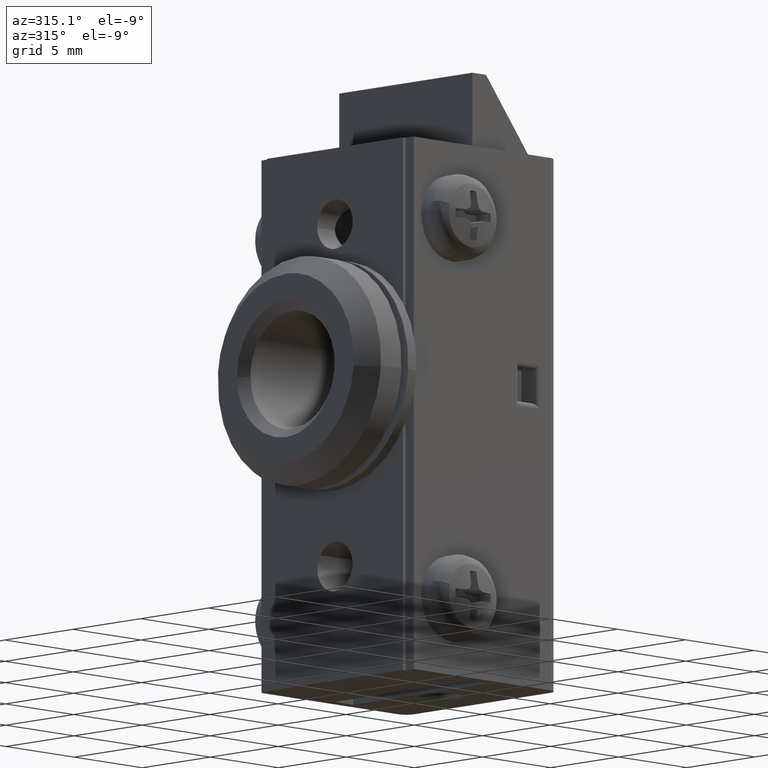
[diagram: clean part render]
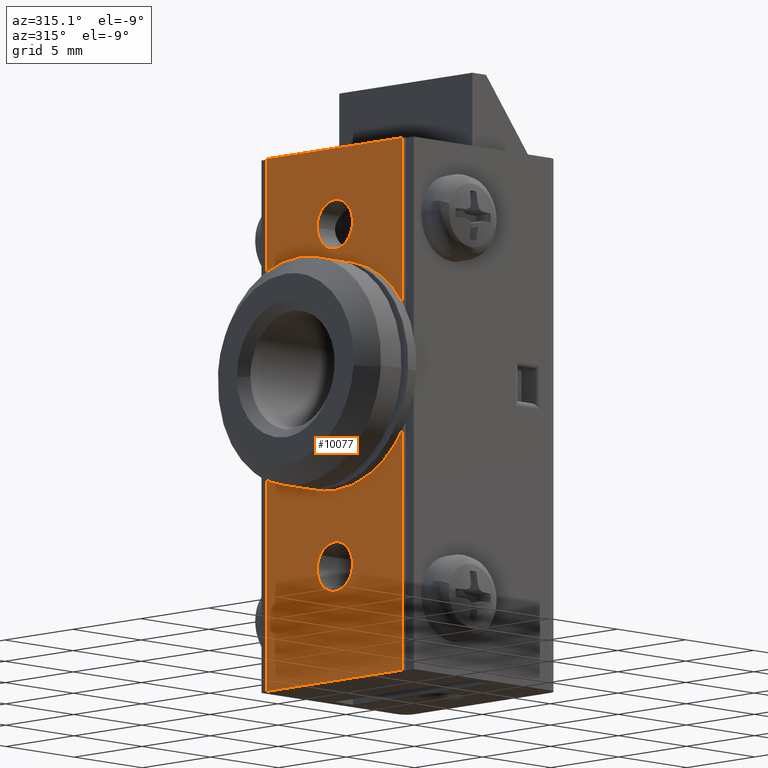
[diagram: same view with one face highlighted and labeled with its STEP entity id]
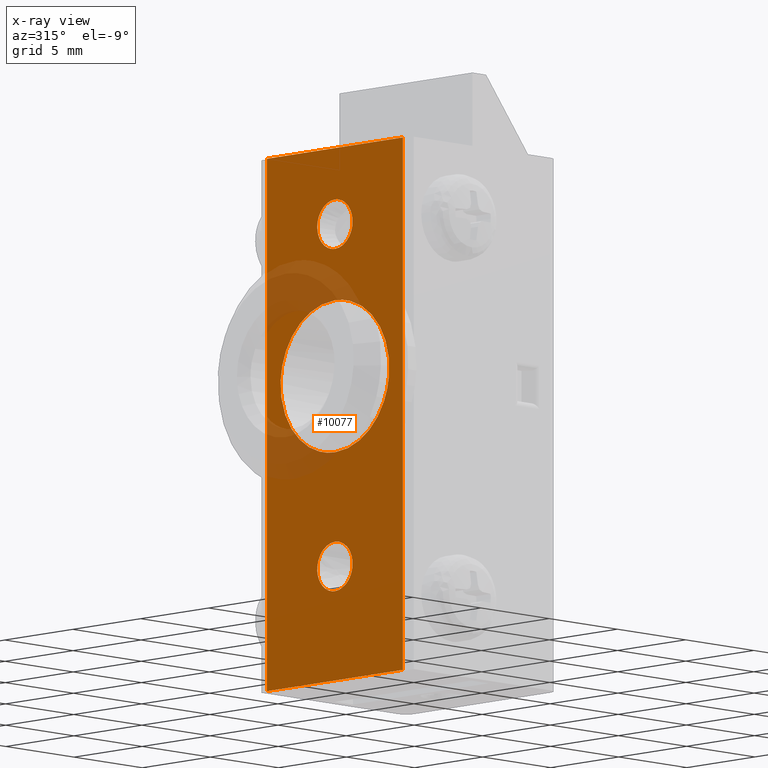
[diagram: x-ray of the same camera — body ghosted, the highlighted face saturated]
A machine part, auxiliary view. The second image highlights one B-rep face of the part: STEP entity #10077.
The next image is the same camera in x-ray: the body ghosted, the highlighted face saturated — about 11% of this face is hidden behind the body in this view.
In plain terms, the highlighted face is a freeform B-spline surface patch.
Its self-contained STEP definition (entity closure, byte-faithful):
#8831=CARTESIAN_POINT('',(-10.600006000000100,-1.299554522465412,24.034030032907619));
#8832=VERTEX_POINT('',#8831);
#8838=CARTESIAN_POINT('',(-10.600006000000100,0.0,25.300000000000001));
#8839=VERTEX_POINT('',#8838);
#8840=CARTESIAN_POINT('',(-10.600006000000098,-1.299554522465412,24.034030032907626));
#8841=CARTESIAN_POINT('',(-10.600006000000102,-1.266403931988820,25.300000000000001));
#8842=CARTESIAN_POINT('',(-10.600006000000100,0.0,25.300000000000001));
#8850=(BOUNDED_CURVE()B_SPLINE_CURVE(2,(#8840,#8841,#8842),.UNSPECIFIED.,.F.,.U.)B_SPLINE_CURVE_WITH_KNOTS((3,3),(0.254603306687910,0.500000000000000),.UNSPECIFIED.)CURVE()GEOMETRIC_REPRESENTATION_ITEM()RATIONAL_B_SPLINE_CURVE((0.989412390583048,0.712499890438578,1.0))REPRESENTATION_ITEM(''));
#8851=EDGE_CURVE('',#8832,#8839,#8850,.T.);
#8853=CARTESIAN_POINT('',(-10.600006000000100,1.299554522465412,23.965969967092381));
#8854=VERTEX_POINT('',#8853);
#8855=CARTESIAN_POINT('',(-10.600006000000100,0.0,25.300000000000001));
#8856=CARTESIAN_POINT('',(-10.600006000000102,1.300000000000000,25.299999999999994));
#8857=CARTESIAN_POINT('',(-10.600006000000100,1.300000000000000,24.0));
#8858=CARTESIAN_POINT('',(-10.600006000000098,1.300000000000001,23.982982067682276));
#8859=CARTESIAN_POINT('',(-10.600006000000107,1.299554522465413,23.965969967092377));
#8867=(BOUNDED_CURVE()B_SPLINE_CURVE(2,(#8855,#8856,#8857,#8858,#8859),.UNSPECIFIED.,.F.,.U.)B_SPLINE_CURVE_WITH_KNOTS((3,2,3),(0.500000000000000,0.750000000000000,0.754603306687911),.UNSPECIFIED.)CURVE()GEOMETRIC_REPRESENTATION_ITEM()RATIONAL_B_SPLINE_CURVE((1.0,0.707106781186548,1.0,0.994606890747970,0.989412390583047))REPRESENTATION_ITEM(''));
#8868=EDGE_CURVE('',#8839,#8854,#8867,.T.);
#9005=CARTESIAN_POINT('',(-10.600006000000100,0.0,22.699999999999999));
#9006=VERTEX_POINT('',#9005);
#9007=CARTESIAN_POINT('',(-10.600006000000102,1.299554522465413,23.965969967092377));
#9008=CARTESIAN_POINT('',(-10.600006000000102,1.266403931988822,22.700000000000010));
#9009=CARTESIAN_POINT('',(-10.600006000000100,0.0,22.699999999999999));
#9017=(BOUNDED_CURVE()B_SPLINE_CURVE(2,(#9007,#9008,#9009),.UNSPECIFIED.,.F.,.U.)B_SPLINE_CURVE_WITH_KNOTS((3,3),(0.754603306687910,1.0),.UNSPECIFIED.)CURVE()GEOMETRIC_REPRESENTATION_ITEM()RATIONAL_B_SPLINE_CURVE((0.989412390583049,0.712499890438577,1.0))REPRESENTATION_ITEM(''));
#9018=EDGE_CURVE('',#8854,#9006,#9017,.T.);
#9020=CARTESIAN_POINT('',(-10.600006000000100,0.0,22.699999999999999));
#9021=CARTESIAN_POINT('',(-10.600006000000102,-1.300000000000000,22.699999999999999));
#9022=CARTESIAN_POINT('',(-10.600006000000100,-1.300000000000000,24.0));
#9023=CARTESIAN_POINT('',(-10.600006000000102,-1.300000000000000,24.017017932317728));
#9024=CARTESIAN_POINT('',(-10.600006000000096,-1.299554522465412,24.034030032907623));
#9032=(BOUNDED_CURVE()B_SPLINE_CURVE(2,(#9020,#9021,#9022,#9023,#9024),.UNSPECIFIED.,.F.,.U.)B_SPLINE_CURVE_WITH_KNOTS((3,2,3),(0.0,0.250000000000000,0.254603306687910),.UNSPECIFIED.)CURVE()GEOMETRIC_REPRESENTATION_ITEM()RATIONAL_B_SPLINE_CURVE((1.0,0.707106781186548,1.0,0.994606890747970,0.989412390583048))REPRESENTATION_ITEM(''));
#9033=EDGE_CURVE('',#9006,#8832,#9032,.T.);
#9074=CARTESIAN_POINT('',(-10.600006000000100,-0.895712017890274,6.942178316990409));
#9075=VERTEX_POINT('',#9074);
#9081=CARTESIAN_POINT('',(-10.600006000000100,0.0,7.300000000000110));
#9082=VERTEX_POINT('',#9081);
#9083=CARTESIAN_POINT('',(-10.600006000000102,-0.895712017890274,6.942178316990410));
#9084=CARTESIAN_POINT('',(-10.600006000000102,-0.519327545403464,7.300000000000109));
#9085=CARTESIAN_POINT('',(-10.600006000000100,0.0,7.300000000000110));
#9093=(BOUNDED_CURVE()B_SPLINE_CURVE(2,(#9083,#9084,#9085),.UNSPECIFIED.,.F.,.U.)B_SPLINE_CURVE_WITH_KNOTS((3,3),(0.378814270902981,0.500000000000000),.UNSPECIFIED.)CURVE()GEOMETRIC_REPRESENTATION_ITEM()RATIONAL_B_SPLINE_CURVE((0.853689749140323,0.858022086922076,1.0))REPRESENTATION_ITEM(''));
#9094=EDGE_CURVE('',#9075,#9082,#9093,.T.);
#9096=CARTESIAN_POINT('',(-10.600006000000100,1.084051568686515,6.717518080907000));
#9097=VERTEX_POINT('',#9096);
#9098=CARTESIAN_POINT('',(-10.600006000000100,0.0,7.300000000000110));
#9099=CARTESIAN_POINT('',(-10.600006000000100,0.698515196779346,7.300000000000111));
#9100=CARTESIAN_POINT('',(-10.600006000000100,1.084051568686515,6.717518080907000));
#9108=(BOUNDED_CURVE()B_SPLINE_CURVE(2,(#9098,#9099,#9100),.UNSPECIFIED.,.F.,.U.)B_SPLINE_CURVE_WITH_KNOTS((3,3),(0.500000000000000,0.655387315363784),.UNSPECIFIED.)CURVE()GEOMETRIC_REPRESENTATION_ITEM()RATIONAL_B_SPLINE_CURVE((1.0,0.817952436161281,0.862207930029887))REPRESENTATION_ITEM(''));
#9109=EDGE_CURVE('',#9082,#9097,#9108,.T.);
#9189=CARTESIAN_POINT('',(-10.600006000000100,0.0,4.700000000000110));
#9190=VERTEX_POINT('',#9189);
#9191=CARTESIAN_POINT('',(-10.600006000000100,1.084051568686515,6.717518080907001));
#9192=CARTESIAN_POINT('',(-10.600006000000104,1.300000000000000,6.391255590874245));
#9193=CARTESIAN_POINT('',(-10.600006000000100,1.300000000000000,6.000000000000110));
#9194=CARTESIAN_POINT('',(-10.600006000000102,1.300000000000000,4.700000000000111));
#9195=CARTESIAN_POINT('',(-10.600006000000100,0.0,4.700000000000110));
#9203=(BOUNDED_CURVE()B_SPLINE_CURVE(2,(#9191,#9192,#9193,#9194,#9195),.UNSPECIFIED.,.F.,.U.)B_SPLINE_CURVE_WITH_KNOTS((3,2,3),(0.655387315363785,0.750000000000000,1.0),.UNSPECIFIED.)CURVE()GEOMETRIC_REPRESENTATION_ITEM()RATIONAL_B_SPLINE_CURVE((0.862207930029888,0.889154345025268,1.0,0.707106781186548,1.0))REPRESENTATION_ITEM(''));
#9204=EDGE_CURVE('',#9097,#9190,#9203,.T.);
#9206=CARTESIAN_POINT('',(-10.600006000000100,0.0,4.700000000000110));
#9207=CARTESIAN_POINT('',(-10.600006000000102,-1.300000000000000,4.700000000000111));
#9208=CARTESIAN_POINT('',(-10.600006000000100,-1.300000000000000,6.000000000000110));
#9209=CARTESIAN_POINT('',(-10.600006000000100,-1.299999999999999,6.557829288925889));
#9210=CARTESIAN_POINT('',(-10.600006000000102,-0.895712017890274,6.942178316990410));
#9218=(BOUNDED_CURVE()B_SPLINE_CURVE(2,(#9206,#9207,#9208,#9209,#9210),.UNSPECIFIED.,.F.,.U.)B_SPLINE_CURVE_WITH_KNOTS((3,2,3),(0.0,0.250000000000000,0.378814270902981),.UNSPECIFIED.)CURVE()GEOMETRIC_REPRESENTATION_ITEM()RATIONAL_B_SPLINE_CURVE((1.0,0.707106781186548,1.0,0.849084694264472,0.853689749140323))REPRESENTATION_ITEM(''));
#9219=EDGE_CURVE('',#9190,#9075,#9218,.T.);
#9391=CARTESIAN_POINT('',(-10.600006000000100,-3.972038406753755,15.527865596184130));
#9392=VERTEX_POINT('',#9391);
#9398=CARTESIAN_POINT('',(-10.600006000000100,0.0,20.0));
#9399=VERTEX_POINT('',#9398);
#9400=CARTESIAN_POINT('',(-10.600006000000102,-3.972038406753756,15.527865596184126));
#9401=CARTESIAN_POINT('',(-10.600006000000105,-4.000000000000000,15.763104802196667));
#9402=CARTESIAN_POINT('',(-10.600006000000100,-4.0,16.0));
#9403=CARTESIAN_POINT('',(-10.600006000000102,-4.000000000000000,19.999999999999996));
#9404=CARTESIAN_POINT('',(-10.600006000000100,0.0,20.0));
#9412=(BOUNDED_CURVE()B_SPLINE_CURVE(2,(#9400,#9401,#9402,#9403,#9404),.UNSPECIFIED.,.F.,.U.)B_SPLINE_CURVE_WITH_KNOTS((3,2,3),(0.229562581367414,0.250000000000000,0.500000000000000),.UNSPECIFIED.)CURVE()GEOMETRIC_REPRESENTATION_ITEM()RATIONAL_B_SPLINE_CURVE((0.956026965581877,0.976056074689856,1.0,0.707106781186548,1.0))REPRESENTATION_ITEM(''));
#9413=EDGE_CURVE('',#9392,#9399,#9412,.T.);
#9415=CARTESIAN_POINT('',(-10.600006000000100,3.992539193685804,16.244194158166621));
#9416=VERTEX_POINT('',#9415);
#9417=CARTESIAN_POINT('',(-10.600006000000100,0.0,20.0));
#9418=CARTESIAN_POINT('',(-10.600006000000102,3.762824267571426,20.000000000000004));
#9419=CARTESIAN_POINT('',(-10.600006000000102,3.992539193685804,16.244194158166621));
#9427=(BOUNDED_CURVE()B_SPLINE_CURVE(2,(#9417,#9418,#9419),.UNSPECIFIED.,.F.,.U.)B_SPLINE_CURVE_WITH_KNOTS((3,3),(0.500000000000000,0.739332962239618),.UNSPECIFIED.)CURVE()GEOMETRIC_REPRESENTATION_ITEM()RATIONAL_B_SPLINE_CURVE((1.0,0.719603993285919,0.976072041668164))REPRESENTATION_ITEM(''));
#9428=EDGE_CURVE('',#9399,#9416,#9427,.T.);
#9502=CARTESIAN_POINT('',(-10.600006000000100,0.0,12.0));
#9503=VERTEX_POINT('',#9502);
#9504=CARTESIAN_POINT('',(-10.600006000000104,3.992539193685804,16.244194158166625));
#9505=CARTESIAN_POINT('',(-10.600006000000107,4.000000000000000,16.122211053221630));
#9506=CARTESIAN_POINT('',(-10.600006000000100,4.0,16.0));
#9507=CARTESIAN_POINT('',(-10.600006000000102,4.000000000000000,12.0));
#9508=CARTESIAN_POINT('',(-10.600006000000100,0.0,12.0));
#9516=(BOUNDED_CURVE()B_SPLINE_CURVE(2,(#9504,#9505,#9506,#9507,#9508),.UNSPECIFIED.,.F.,.U.)B_SPLINE_CURVE_WITH_KNOTS((3,2,3),(0.739332962239618,0.750000000000000,1.0),.UNSPECIFIED.)CURVE()GEOMETRIC_REPRESENTATION_ITEM()RATIONAL_B_SPLINE_CURVE((0.976072041668164,0.987502787900628,1.0,0.707106781186548,1.0))REPRESENTATION_ITEM(''));
#9517=EDGE_CURVE('',#9416,#9503,#9516,.T.);
#9519=CARTESIAN_POINT('',(-10.600006000000100,0.0,12.0));
#9520=CARTESIAN_POINT('',(-10.600006000000104,-3.552700386969869,12.0));
#9521=CARTESIAN_POINT('',(-10.600006000000102,-3.972038406753756,15.527865596184126));
#9529=(BOUNDED_CURVE()B_SPLINE_CURVE(2,(#9519,#9520,#9521),.UNSPECIFIED.,.F.,.U.)B_SPLINE_CURVE_WITH_KNOTS((3,3),(0.0,0.229562581367414),.UNSPECIFIED.)CURVE()GEOMETRIC_REPRESENTATION_ITEM()RATIONAL_B_SPLINE_CURVE((1.0,0.731050706496692,0.956026965581877))REPRESENTATION_ITEM(''));
#9530=EDGE_CURVE('',#9503,#9392,#9529,.T.);
#9935=CARTESIAN_POINT('',(-10.600006000000119,-5.000000000000091,28.0));
#9936=VERTEX_POINT('',#9935);
#9937=CARTESIAN_POINT('',(-10.600006000000119,5.0,28.0));
#9938=VERTEX_POINT('',#9937);
#9939=CARTESIAN_POINT('',(-10.600006000000119,-5.000000000000091,28.0));
#9940=CARTESIAN_POINT('',(-10.600006000000119,5.0,28.0));
#9941=QUASI_UNIFORM_CURVE('',1,(#9939,#9940),.UNSPECIFIED.,.F.,.U.);
#9942=EDGE_CURVE('',#9936,#9938,#9941,.T.);
#9971=CARTESIAN_POINT('',(-10.600006000000119,-5.000000000000091,0.0));
#9972=VERTEX_POINT('',#9971);
#9973=CARTESIAN_POINT('',(-10.600006000000119,5.0,0.0));
#9974=VERTEX_POINT('',#9973);
#9975=CARTESIAN_POINT('',(-10.600006000000119,-5.000000000000091,0.0));
#9976=CARTESIAN_POINT('',(-10.600006000000119,5.0,0.0));
#9977=QUASI_UNIFORM_CURVE('',1,(#9975,#9976),.UNSPECIFIED.,.F.,.U.);
#9978=EDGE_CURVE('',#9972,#9974,#9977,.T.);
#10040=CARTESIAN_POINT('',(-10.600006000000119,-5.499499980618155,29.398599945730570));
#10041=CARTESIAN_POINT('',(-10.600006000000119,-5.499499980618155,-1.398600696749092));
#10042=CARTESIAN_POINT('',(-10.600006000000119,5.499500248838965,29.398599945730570));
#10043=CARTESIAN_POINT('',(-10.600006000000119,5.499500248838965,-1.398600696749092));
#10044=B_SPLINE_SURFACE_WITH_KNOTS('',1,1,((#10040,#10042),(#10041,#10043)),.UNSPECIFIED.,.F.,.F.,.U.,(2,2),(2,2),(0.0,30.797200642479659),(0.0,10.999000229457121),.UNSPECIFIED.);
#10045=ORIENTED_EDGE('',*,*,#9942,.T.);
#10046=CARTESIAN_POINT('',(-10.600006000000119,5.0,0.0));
#10047=CARTESIAN_POINT('',(-10.600006000000119,5.0,28.0));
#10048=QUASI_UNIFORM_CURVE('',1,(#10046,#10047),.UNSPECIFIED.,.F.,.U.);
#10049=EDGE_CURVE('',#9974,#9938,#10048,.T.);
#10050=ORIENTED_EDGE('',*,*,#10049,.F.);
#10051=ORIENTED_EDGE('',*,*,#9978,.F.);
#10052=CARTESIAN_POINT('',(-10.600006000000119,-5.000000000000091,0.0));
#10053=CARTESIAN_POINT('',(-10.600006000000119,-5.000000000000091,28.0));
#10054=QUASI_UNIFORM_CURVE('',1,(#10052,#10053),.UNSPECIFIED.,.F.,.U.);
#10055=EDGE_CURVE('',#9972,#9936,#10054,.T.);
#10056=ORIENTED_EDGE('',*,*,#10055,.T.);
#10057=EDGE_LOOP('',(#10045,#10050,#10051,#10056));
#10058=FACE_OUTER_BOUND('',#10057,.T.);
#10059=ORIENTED_EDGE('',*,*,#9428,.F.);
#10060=ORIENTED_EDGE('',*,*,#9413,.F.);
#10061=ORIENTED_EDGE('',*,*,#9530,.F.);
#10062=ORIENTED_EDGE('',*,*,#9517,.F.);
#10063=EDGE_LOOP('',(#10059,#10060,#10061,#10062));
#10064=FACE_BOUND('',#10063,.T.);
#10065=ORIENTED_EDGE('',*,*,#9109,.F.);
#10066=ORIENTED_EDGE('',*,*,#9094,.F.);
#10067=ORIENTED_EDGE('',*,*,#9219,.F.);
#10068=ORIENTED_EDGE('',*,*,#9204,.F.);
#10069=EDGE_LOOP('',(#10065,#10066,#10067,#10068));
#10070=FACE_BOUND('',#10069,.T.);
#10071=ORIENTED_EDGE('',*,*,#8868,.F.);
#10072=ORIENTED_EDGE('',*,*,#8851,.F.);
#10073=ORIENTED_EDGE('',*,*,#9033,.F.);
#10074=ORIENTED_EDGE('',*,*,#9018,.F.);
#10075=EDGE_LOOP('',(#10071,#10072,#10073,#10074));
#10076=FACE_BOUND('',#10075,.T.);
#10077=ADVANCED_FACE('',(#10058,#10064,#10070,#10076),#10044,.F.);